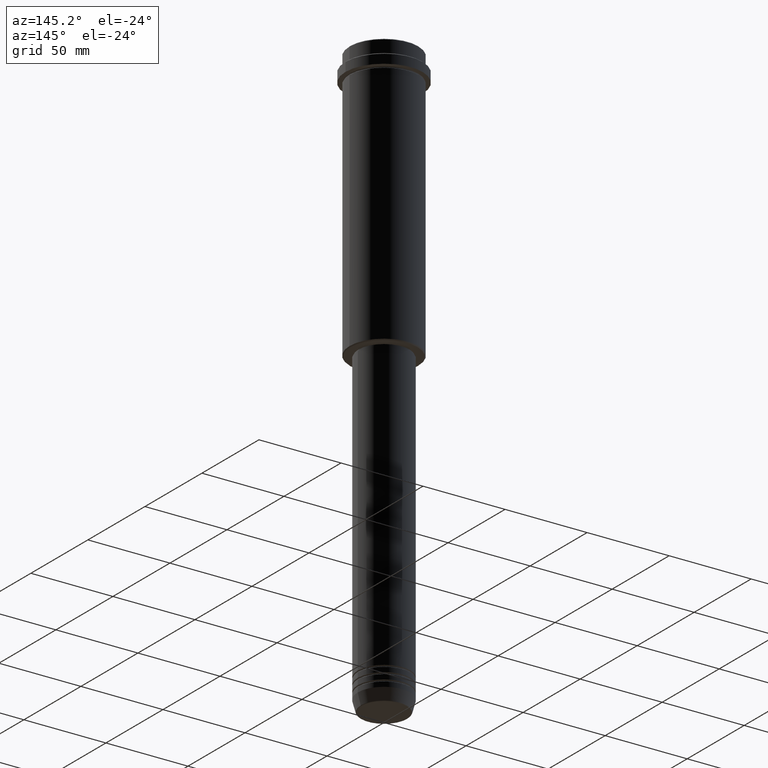
[diagram: clean part render]
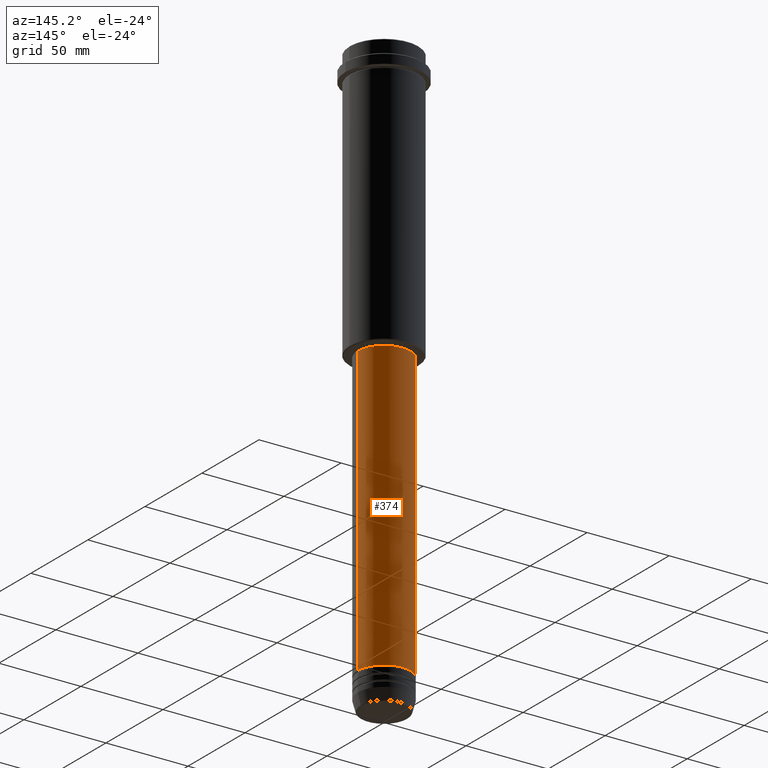
[diagram: same view with one face highlighted and labeled with its STEP entity id]
A machine part, auxiliary view. The second image highlights one B-rep face of the part: STEP entity #374.
In plain terms, the highlighted cylindrical surface (edge-blend (fillet) strip) has radius 16 mm, axis along (-0, -0, 1).
Its self-contained STEP definition (entity closure, byte-faithful):
#30 = EDGE_CURVE ( 'NONE', #994, #1325, #740, .T. ) ;
#33 = EDGE_CURVE ( 'NONE', #994, #874, #959, .T. ) ;
#38 = ORIENTED_EDGE ( 'NONE', *, *, #30, .F. ) ;
#66 = DIRECTION ( 'NONE',  ( 1.000000000000000000, 0.000000000000000000, 0.000000000000000000 ) ) ;
#91 = DIRECTION ( 'NONE',  ( 1.000000000000000000, 0.000000000000000000, 0.000000000000000000 ) ) ;
#111 = CARTESIAN_POINT ( 'NONE',  ( -16.00000000000000000, 1.959434878635765131E-15, -340.9999999999998863 ) ) ;
#169 = DIRECTION ( 'NONE',  ( -0.000000000000000000, -0.000000000000000000, 1.000000000000000000 ) ) ;
#173 = VERTEX_POINT ( 'NONE', #533 ) ;
#221 = LINE ( 'NONE', #837, #736 ) ;
#281 = DIRECTION ( 'NONE',  ( -0.000000000000000000, -0.000000000000000000, 1.000000000000000000 ) ) ;
#285 = EDGE_LOOP ( 'NONE', ( #1157, #1032, #418, #38 ) ) ;
#308 = CYLINDRICAL_SURFACE ( 'NONE', #1356, 16.00000000000000000 ) ;
#374 = ADVANCED_FACE ( 'NONE', ( #762 ), #308, .T. ) ;
#397 = EDGE_CURVE ( 'NONE', #874, #173, #221, .T. ) ;
#418 = ORIENTED_EDGE ( 'NONE', *, *, #1362, .F. ) ;
#424 = DIRECTION ( 'NONE',  ( -0.000000000000000000, -0.000000000000000000, 1.000000000000000000 ) ) ;
#531 = CARTESIAN_POINT ( 'NONE',  ( 0.000000000000000000, 0.000000000000000000, -165.9999999999999432 ) ) ;
#533 = CARTESIAN_POINT ( 'NONE',  ( -16.00000000000000355, 1.959434878635765526E-15, -165.9999999999999432 ) ) ;
#573 = AXIS2_PLACEMENT_3D ( 'NONE', #1152, #169, #66 ) ;
#709 = CARTESIAN_POINT ( 'NONE',  ( 16.00000000000000000, 0.000000000000000000, 0.000000000000000000 ) ) ;
#735 = CARTESIAN_POINT ( 'NONE',  ( 0.000000000000000000, 0.000000000000000000, 0.000000000000000000 ) ) ;
#736 = VECTOR ( 'NONE', #1312, 1000.000000000000000 ) ;
#740 = LINE ( 'NONE', #709, #1057 ) ;
#762 = FACE_OUTER_BOUND ( 'NONE', #285, .T. ) ;
#837 = CARTESIAN_POINT ( 'NONE',  ( -16.00000000000000000, 1.959434878635765131E-15, 0.000000000000000000 ) ) ;
#874 = VERTEX_POINT ( 'NONE', #111 ) ;
#959 = CIRCLE ( 'NONE', #573, 16.00000000000000000 ) ;
#994 = VERTEX_POINT ( 'NONE', #1348 ) ;
#1020 = CIRCLE ( 'NONE', #1042, 16.00000000000000355 ) ;
#1032 = ORIENTED_EDGE ( 'NONE', *, *, #397, .T. ) ;
#1042 = AXIS2_PLACEMENT_3D ( 'NONE', #531, #424, #1209 ) ;
#1057 = VECTOR ( 'NONE', #281, 1000.000000000000000 ) ;
#1094 = CARTESIAN_POINT ( 'NONE',  ( 16.00000000000000355, 0.000000000000000000, -165.9999999999999432 ) ) ;
#1152 = CARTESIAN_POINT ( 'NONE',  ( 0.000000000000000000, 0.000000000000000000, -340.9999999999998863 ) ) ;
#1157 = ORIENTED_EDGE ( 'NONE', *, *, #33, .T. ) ;
#1202 = DIRECTION ( 'NONE',  ( -0.000000000000000000, -0.000000000000000000, 1.000000000000000000 ) ) ;
#1209 = DIRECTION ( 'NONE',  ( 1.000000000000000000, 0.000000000000000000, 0.000000000000000000 ) ) ;
#1312 = DIRECTION ( 'NONE',  ( -0.000000000000000000, -0.000000000000000000, 1.000000000000000000 ) ) ;
#1325 = VERTEX_POINT ( 'NONE', #1094 ) ;
#1348 = CARTESIAN_POINT ( 'NONE',  ( 16.00000000000000000, 0.000000000000000000, -340.9999999999998863 ) ) ;
#1356 = AXIS2_PLACEMENT_3D ( 'NONE', #735, #1202, #91 ) ;
#1362 = EDGE_CURVE ( 'NONE', #1325, #173, #1020, .T. ) ;